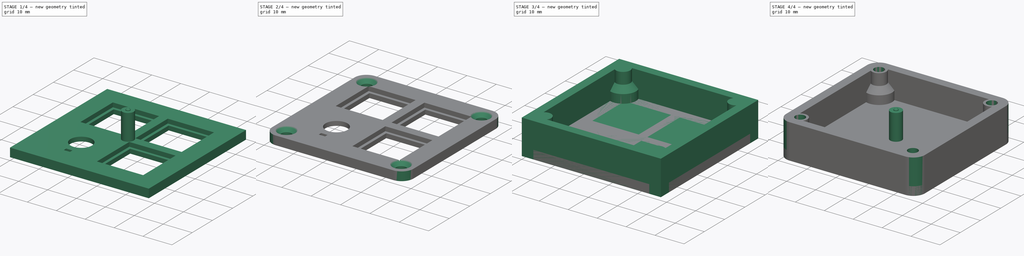
[diagram: build sequence overview — one tinted view per stage of 4, left to right]
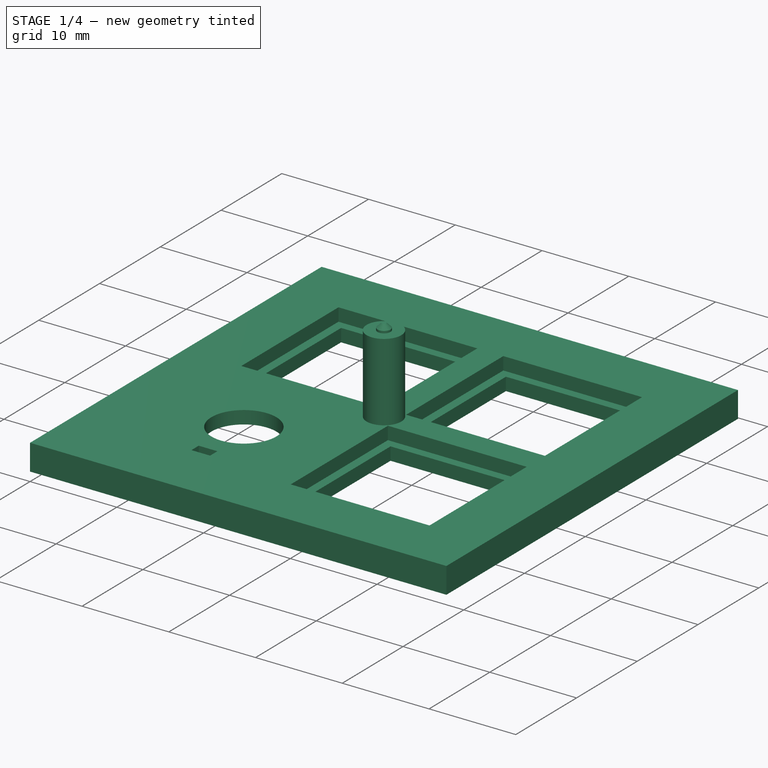
[diagram: stage 1 of 4 — iso view after this stage's code; geometry added in this stage tinted green]
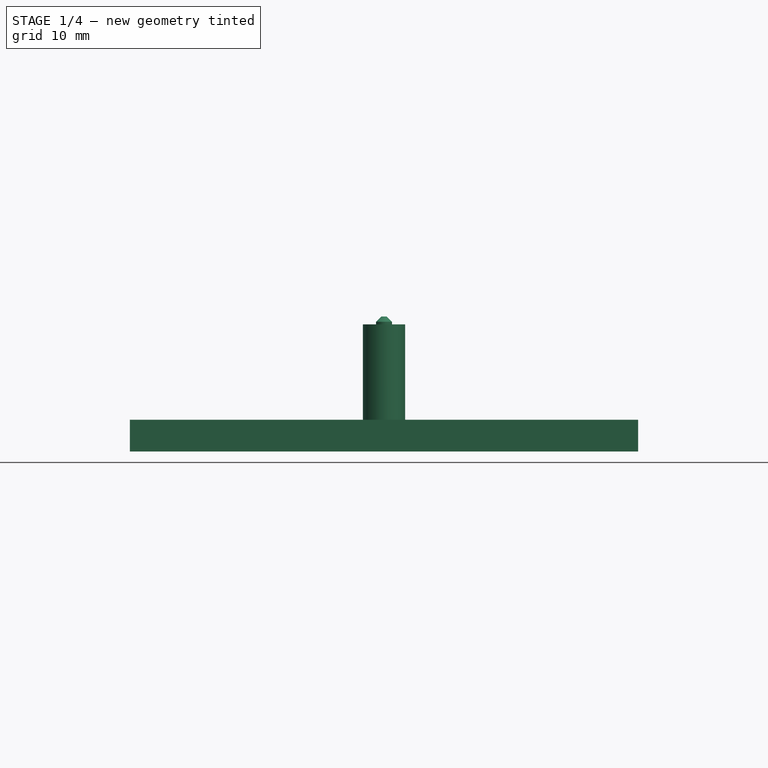
[diagram: stage 1 of 4 — front view after this stage's code; geometry added in this stage tinted green]
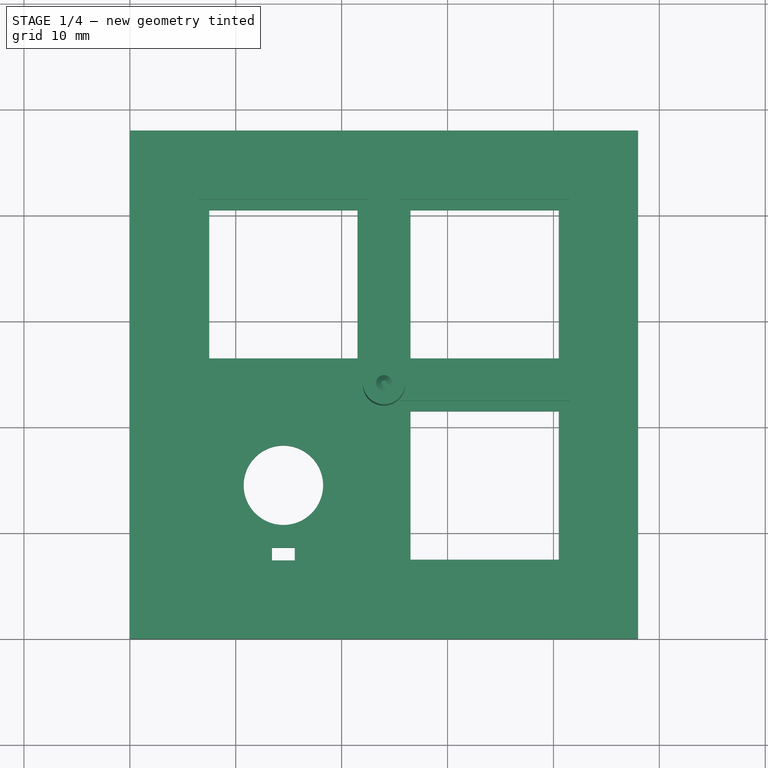
[diagram: stage 1 of 4 — top view after this stage's code; geometry added in this stage tinted green]
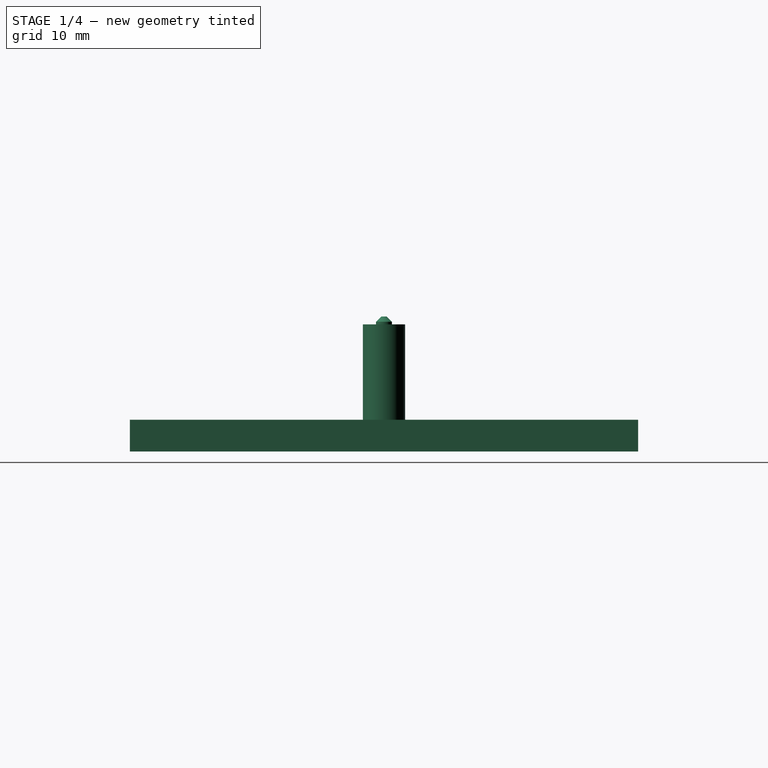
[diagram: stage 1 of 4 — right view after this stage's code; geometry added in this stage tinted green]
FCSTD DOCUMENT  (FreeCAD 1.0R39319 (Git))
Label: kbTestPrint
License: All rights reserved
LicenseURL: https://en.wikipedia.org/wiki/All_rights_reserved
objects: Sketcher::SketchObject×6, PartDesign::SubShapeBinder×6, App::Link×4, Part::FeaturePython×4, PartDesign::Boolean×4, PartDesign::Body×3, PartDesign::Pad×2, PartDesign::Fillet×2, PartDesign::Hole×2, App::VarSet×1, PartDesign::Thickness×1
note: 54 computed .brp shape members not serialized (recipe doc carries the construction recipe); baked Part::Feature solids carry a one-line shape summary decoded from their .brp
EXTERNAL_REF file=Config.FCStd obj=VarSet
EXTERNAL_REF file=SwitchHoleNegative.FCStd obj=Body001
EXTERNAL_REF file=SwitchHoleNegative.FCStd obj=Body003
EXTERNAL_REF file=lib/extras.FCStd obj=Body001
EXTERNAL_REF file=lib/extras.FCStd obj=Body002

FEATURE [Sketcher::SketchObject] Sketch004
  ArcFitTolerance = 1e-06
  AttachmentSupport = -> [XY_Plane002]
  FullyConstrained = true
  MakeInternals = false
  MapMode = 5
  expr: Constraints[0] = <<Config>>#<<Vars>>.FrameBorder + <<Config>>#<<Vars>>.SwitchSpacing
  expr: Constraints[1] = <<Config>>#<<Vars>>.FrameBorder + <<Config>>#<<Vars>>.SwitchSpacing
  sketch-geometry (1):
    g0: GeomPoint X=24 Y=24 Z=0
  constraints (2):
    c: DistanceX(g-1,g0) = 24
    c: DistanceY(g-1,g0) = 24
FEATURE [App::Link] Link003  label="Support"
  LinkedObject = -> <external lib/extras.FCStd>#Body002
FEATURE [Part::FeaturePython] PointArray002  # Draft array (typed FeaturePython)
  Base = -> Link003
  Count = 1
  Fuse = false
  PointObject = -> Sketch004
  expr: .Placement.Base.z = 0
FEATURE [PartDesign::Body] Body001  label="Bottom"
  AllowCompound = false
  Group = -> [Sketch001,Pad001,Thickness,Fillet,Boolean001,Binder003,Hole001,Boolean002]
  Origin = -> Origin001
  Placement = pos=(0,0,-12) rot=(0,0,1;0rad)
  Tip = -> Boolean002
  expr: .Placement.Base.z = -<<Config>>#<<Vars>>.BottomCaseHeight
FEATURE [PartDesign::SubShapeBinder] Binder005
  BindCopyOnChange = 0
  BindMode = 0
  ClaimChildren = false
  Context = -> Body [Boolean003.Binder005.]
  Fuse = false
  MakeFace = true
  OffsetFill = false
  OffsetIntersection = false
  OffsetJoinType = 0
  OffsetOpenResult = false
  PartialLoad = false
  Placement = pos=(0,0,-12) rot=(0,0,1;0rad)
  Refine = true
  Relative = true
  Support = -> [PointArray002]
  _Version = 2
  expr: .Placement.Base.z = -<<Config>>#<<Vars>>.BottomCaseHeight
FEATURE [Sketcher::SketchObject] Sketch005  label="KeysLocations"
  ArcFitTolerance = 1e-06
  AttachmentSupport = -> [XY_Plane002]
  FullyConstrained = true
  MakeInternals = false
  MapMode = 5
  expr: Constraints[0] = <<Config>>#<<Vars>>.FrameBorder + <<Config>>#VarSet.SwitchSpacing * 1.5
  expr: Constraints[1] = <<Config>>#<<Vars>>.FrameBorder + <<Config>>#<<Vars>>.SwitchSpacing * 0.5
  expr: Constraints[2] = <<Config>>#<<Vars>>.FrameBorder + <<Config>>#<<Vars>>.SwitchSpacing * 0.5
  expr: Constraints[5] = <<Config>>#<<Vars>>.SwitchSpacing * 1.5 + <<Config>>#<<Vars>>.FrameBorder
  sketch-geometry (3):
    g0: GeomPoint X=33.5 Y=14.5 Z=0
    g1: GeomPoint X=14.5 Y=33.5 Z=0
    g2: GeomPoint X=33.5 Y=33.5 Z=0
  constraints (6):
    c: DistanceX(g-1,g0) = 33.5
    c: DistanceY(g-1,g0) = 14.5
    c: DistanceX(g-1,g1) = 14.5
    c: Horizontal(g2,g1)
    c: Vertical(g2,g0)
    c: DistanceY(g-1,g1) = 33.5
FEATURE [Part::FeaturePython] PointArray003  # Draft array (typed FeaturePython)
  Base = -> Link
  Count = 3
  Fuse = false
  PointObject = -> Sketch005
FEATURE [PartDesign::SubShapeBinder] Binder  label="CutoutsBinder"
  BindCopyOnChange = 0
  BindMode = 0
  ClaimChildren = false
  Context = -> Body [Binder.]
  Fuse = false
  MakeFace = true
  OffsetFill = false
  OffsetIntersection = false
  OffsetJoinType = 0
  OffsetOpenResult = false
  PartialLoad = false
  Refine = true
  Relative = true
  Support = -> [Link001,PointArray003]
  _Version = 2
FEATURE [PartDesign::Boolean] Boolean
  BaseFeature = -> Pad
  Group = -> [Binder]
  Refine = true
  Suppressed = false
  Type = 1
  UsePlacement = true
FEATURE [PartDesign::Body] Body  label="Top"
  AllowCompound = false
  Group = -> [Sketch,Pad,Boolean,Binder002,Hole,Fillet001,Boolean003]
  Origin = -> Origin
  Tip = -> Boolean003

RESOLVED EXTERNAL PARTS (link-assembly join: the EXTERNAL_REF files above that resolve inside this repo's crawl, each included once):
---- part SwitchHoleNegative.FCStd = doc fcstd_761a885e1cb6 ----
FCSTD DOCUMENT  (FreeCAD 1.0R39319 (Git))
Label: SwitchHoleNegative
License: All rights reserved
LicenseURL: https://en.wikipedia.org/wiki/All_rights_reserved
objects: Sketcher::SketchObject×7, PartDesign::Pad×7, PartDesign::Body×3, App::Link×1
note: 38 computed .brp shape members not serialized (recipe doc carries the construction recipe); baked Part::Feature solids carry a one-line shape summary decoded from their .brp
EXTERNAL_REF file=Config.FCStd obj=VarSet
EXTERNAL_REF file=lib/ec11.FCStd obj=EC11B_SW_Vert_F

FEATURE [Sketcher::SketchObject] Sketch001
  ArcFitTolerance = 1e-06
  AttachmentSupport = -> [XY_Plane003]
  FullyConstrained = true
  MakeInternals = false
  MapMode = 5
  expr: Constraints[8] = <<Config>>#<<Vars>>.SwitchHoleTotal
  expr: Constraints[9] = <<Config>>#<<Vars>>.SwitchHoleTotal
  sketch-geometry (4):
    g0: LineSegment StartX=7.025 StartY=-7.025 StartZ=0 EndX=7.025 EndY=7.025 EndZ=0
    g1: LineSegment StartX=7.025 StartY=7.025 StartZ=0 EndX=-7.025 EndY=7.025 EndZ=0
    g2: LineSegment StartX=-7.025 StartY=7.025 StartZ=0 EndX=-7.025 EndY=-7.025 EndZ=0
    g3: LineSegment StartX=-7.025 StartY=-7.025 StartZ=0 EndX=7.025 EndY=-7.025 EndZ=0
  constraints (11):
    c: Coincident(g0,g1)
    c: Coincident(g1,g2)
    c: Coincident(g2,g3)
    c: Coincident(g3,g0)
    c: Vertical(g0)
    c: Vertical(g2)
    c: Horizontal(g1)
    c: Horizontal(g3)
    c: DistanceX(g1,g1) = 14.05
    c: DistanceY(g2,g2) = 14.05
    c: Symmetric(g1,g0,g-1)
FEATURE [PartDesign::Pad] Pad001
  Direction = (0,0,1)
  Length = 1.5
  Length2 = 10
  Profile = -> Sketch001
  ReferenceAxis = -> Sketch001 [N_Axis]
  Refine = true
  Suppressed = false
  Type = 0
  expr: Length = <<Config>>#<<Vars>>.SwitchPlateThickness
FEATURE [Sketcher::SketchObject] Sketch002
  ArcFitTolerance = 1e-06
  AttachmentSupport = -> [Pad001]
  FullyConstrained = true
  MakeInternals = false
  MapMode = 5
  Placement = pos=(0,0,1.5) rot=(0,0,1;0rad)
  expr: Constraints[8] = <<Config>>#<<Vars>>.SwitchReliefLength
  expr: Constraints[9] = <<Config>>#<<Vars>>.SwitchReliefLength
  sketch-geometry (4):
    g0: LineSegment StartX=-8 StartY=8 StartZ=0 EndX=-8 EndY=-8 EndZ=0
    g1: LineSegment StartX=-8 StartY=-8 StartZ=0 EndX=8 EndY=-8 EndZ=0
    g2: LineSegment StartX=8 StartY=-8 StartZ=0 EndX=8 EndY=8 EndZ=0
    g3: LineSegment StartX=8 StartY=8 StartZ=0 EndX=-8 EndY=8 EndZ=0
  constraints (11):
    c: Coincident(g0,g1)
    c: Coincident(g1,g2)
    c: Coincident(g2,g3)
    c: Coincident(g3,g0)
    c: Vertical(g0)
    c: Vertical(g2)
    c: Horizontal(g1)
    c: Horizontal(g3)
    c: DistanceX(g3,g3) = 16
    c: DistanceY(g0,g0) = 16
    c: Symmetric(g0,g1,g-1)
FEATURE [PartDesign::Pad] Pad002
  BaseFeature = -> Pad001
  Direction = (0,0,1)
  Length = 1.5
  Length2 = 10
  Profile = -> Sketch002
  ReferenceAxis = -> Sketch002 [N_Axis]
  Refine = true
  Suppressed = false
  Type = 0
  expr: Length = <<Config>>#<<Vars>>.PlateThickness - <<Config>>#<<Vars>>.SwitchPlateThickness
FEATURE [PartDesign::Body] Body001  label="SwitchPocket"
  AllowCompound = false
  Group = -> [Sketch001,Pad001,Sketch002,Pad002]
  Origin = -> Origin003
  Placement = pos=(109.5,4.5,0) rot=(0,0,1;0rad)
  Tip = -> Pad002
FEATURE [Sketcher::SketchObject] Sketch
  ArcFitTolerance = 1e-06
  AttachmentSupport = -> [XY_Plane004]
  FullyConstrained = true
  MakeInternals = false
  MapMode = 5
  sketch-geometry (4):
    g0: LineSegment StartX=-6 StartY=-7.1 StartZ=0 EndX=6 EndY=-7.1 EndZ=0
    g1: LineSegment StartX=6 StartY=-7.1 StartZ=0 EndX=6 EndY=7.1 EndZ=0
    g2: LineSegment StartX=6 StartY=7.1 StartZ=0 EndX=-6 EndY=7.1 EndZ=0
    g3: LineSegment StartX=-6 StartY=7.1 StartZ=0 EndX=-6 EndY=-7.1 EndZ=0
  constraints (11):
    c: Coincident(g0,g1)
    c: Coincident(g1,g2)
    c: Coincident(g2,g3)
    c: Coincident(g3,g0)
    c: Horizontal(g0)
    c: Horizontal(g2)
    c: Vertical(g1)
    c: Vertical(g3)
    c: DistanceX(g2,g2) = 12
    c: DistanceY(g3,g3) = 14.2
    c: Symmetric(g2,g0,g-1)
FEATURE [App::Link] Link  label="EC11B-SW-Vert-F"
  LinkPlacement = pos=(0,-0.399999,-5) rot=(0,0,1;0rad)
  LinkedObject = -> <external lib/ec11.FCStd>#EC11B_SW_Vert_F
  Placement = pos=(0,-0.399999,-5) rot=(0,0,1;0rad)
FEATURE [PartDesign::Pad] Pad
  Direction = (0,0,1)
  Length = 1.5
  Length2 = 10
  Profile = -> Sketch
  ReferenceAxis = -> Sketch [N_Axis]
  Refine = true
  Suppressed = false
  Type = 0
  expr: Length = <<Config>>#<<Vars>>.PlateThickness - <<Config>>#<<Vars>>.SwitchPlateThickness
FEATURE [Sketcher::SketchObject] Sketch003
  ArcFitTolerance = 1e-06
  AttachmentSupport = -> [Pad]
  FullyConstrained = true
  MakeInternals = false
  MapMode = 5
  Placement = pos=(0,0,1.5) rot=(0,0,1;0rad)
  sketch-geometry (1):
    g0: Circle CenterX=0 CenterY=0 CenterZ=0 NormalX=0 NormalY=0 NormalZ=1 AngleXU=0 Radius=3.75
  constraints (2):
    c: Coincident(g0,g-1)
    c: Diameter(g0) = 7.5
FEATURE [PartDesign::Pad] Pad003
  BaseFeature = -> Pad
  Direction = (0,0,1)
  Length = 1.5
  Length2 = 10
  Profile = -> Sketch003
  ReferenceAxis = -> Sketch003 [N_Axis]
  Refine = true
  Suppressed = false
  Type = 0
  expr: Length = <<Config>>#<<Vars>>.SwitchPlateThickness
FEATURE [Sketcher::SketchObject] Sketch004
  ArcFitTolerance = 1e-06
  AttachmentSupport = -> [Pad003]
  ExternalGeometry = -> [Pad003]
  FullyConstrained = true
  MakeInternals = false
  MapMode = 5
  Placement = pos=(0,0,1.5) rot=(0,0,1;0rad)
  sketch-geometry (4):
    g0: LineSegment StartX=-1.075 StartY=-7.1 StartZ=0 EndX=1.075 EndY=-7.1 EndZ=0
    g1: LineSegment StartX=1.075 StartY=-7.1 StartZ=0 EndX=1.075 EndY=-5.9 EndZ=0
    g2: LineSegment StartX=1.075 StartY=-5.9 StartZ=0 EndX=-1.075 EndY=-5.9 EndZ=0
    g3: LineSegment StartX=-1.075 StartY=-5.9 StartZ=0 EndX=-1.075 EndY=-7.1 EndZ=0
  constraints (11):
    c: Coincident(g0,g1)
    c: Coincident(g1,g2)
    c: Coincident(g2,g3)
    c: Coincident(g3,g0)
    c: Horizontal(g0)
    c: Vertical(g1)
    c: Vertical(g3)
    c: PointOnObject(g0,g-3)
    c: Symmetric(g1,g2,g-2)
    c: Distance(g1,g3) = 2.15
    c: Distance(g0,g2) = 1.2
FEATURE [PartDesign::Pad] Pad004
  BaseFeature = -> Pad003
  Direction = (0,0,1)
  Length = 1.5
  Length2 = 10
  Profile = -> Sketch004
  ReferenceAxis = -> Sketch004 [N_Axis]
  Refine = true
  Suppressed = false
  Type = 0
  expr: Length = <<Config>>#<<Vars>>.SwitchPlateThickness
FEATURE [PartDesign::Body] Body003  label="RotaryPocket"
  AllowCompound = false
  Group = -> [Sketch,Pad,Sketch003,Pad003,Sketch004,Pad004]
  Origin = -> Origin004
  Tip = -> Pad004
FEATURE [Sketcher::SketchObject] Sketch005
  ArcFitTolerance = 1e-06
  AttachmentSupport = -> [XY_Plane]
  FullyConstrained = true
  MakeInternals = false
  MapMode = 5
  sketch-geometry (4):
    g0: LineSegment StartX=-7.15 StartY=-18.2 StartZ=0 EndX=7.15 EndY=-18.2 EndZ=0
    g1: LineSegment StartX=7.15 StartY=-18.2 StartZ=0 EndX=7.15 EndY=18.2 EndZ=0
    g2: LineSegment StartX=7.15 StartY=18.2 StartZ=0 EndX=-7.15 EndY=18.2 EndZ=0
    g3: LineSegment StartX=-7.15 StartY=18.2 StartZ=0 EndX=-7.15 EndY=-18.2 EndZ=0
  constraints (11):
    c: Coincident(g0,g1)
    c: Coincident(g1,g2)
    c: Coincident(g2,g3)
    c: Coincident(g3,g0)
    c: Horizontal(g0)
    c: Horizontal(g2)
    c: Vertical(g1)
    c: Vertical(g3)
    c: Symmetric(g2,g0,g-1)
    c: DistanceX(g2,g2) = 14.3
    c: DistanceY(g3,g3) = 36.4
FEATURE [PartDesign::Pad] Pad005
  Direction = (0,0,1)
  Length = 3
  Length2 = 10
  Profile = -> Sketch005
  ReferenceAxis = -> Sketch005 [N_Axis]
  Refine = true
  Suppressed = false
  Type = 0
FEATURE [Sketcher::SketchObject] Sketch006
  ArcFitTolerance = 1e-06
  AttachmentSupport = -> [Pad005]
  ExternalGeometry = -> [Pad005]
  FullyConstrained = true
  MakeInternals = false
  MapMode = 5
  Placement = pos=(0,0,0) rot=(1,0,0;3.14159rad)
  sketch-geometry (4):
    g0: LineSegment StartX=-7.15 StartY=18.2 StartZ=0 EndX=-7.15 EndY=15.8 EndZ=0
    g1: LineSegment StartX=-7.15 StartY=15.8 StartZ=0 EndX=7.15 EndY=15.8 EndZ=0
    g2: LineSegment StartX=7.15 StartY=15.8 StartZ=0 EndX=7.15 EndY=18.2 EndZ=0
    g3: LineSegment StartX=7.15 StartY=18.2 StartZ=0 EndX=-7.15 EndY=18.2 EndZ=0
  constraints (11):
    c: Coincident(g0,g1)
    c: Coincident(g1,g2)
    c: Coincident(g2,g3)
    c: Coincident(g3,g0)
    c: Vertical(g0)
    c: Vertical(g2)
    c: Horizontal(g1)
    c: Horizontal(g3)
    c: Coincident(g0,g-4)
    c: PointOnObject(g1,g-5)
    c: DistanceY(g2,g2) = 2.4
FEATURE [PartDesign::Pad] Pad006
  BaseFeature = -> Pad005
  Direction = (0,0,-1)
  Length = 1.5
  Length2 = 10
  Profile = -> Sketch006
  ReferenceAxis = -> Sketch006 [N_Axis]
  Refine = true
  Suppressed = false
  Type = 0
  expr: Length = <<Config>>#<<Vars>>.SwitchPlateThickness
FEATURE [PartDesign::Body] Body  label="NiceViewPocket"
  AllowCompound = false
  Group = -> [Sketch005,Pad005,Sketch006,Pad006]
  Origin = -> Origin
  Tip = -> Pad006
---- part lib/extras.FCStd = doc fcstd_7de95790efa8 ----
FCSTD DOCUMENT  (FreeCAD 1.0R39319 (Git))
Label: extras
License: All rights reserved
LicenseURL: https://en.wikipedia.org/wiki/All_rights_reserved
objects: PartDesign::Pad×5, Sketcher::SketchObject×4, PartDesign::Body×3, PartDesign::Chamfer×2
note: 32 computed .brp shape members not serialized (recipe doc carries the construction recipe); baked Part::Feature solids carry a one-line shape summary decoded from their .brp
EXTERNAL_REF file=../Config.FCStd obj=VarSet

FEATURE [Sketcher::SketchObject] Sketch
  ArcFitTolerance = 1e-06
  AttachmentSupport = -> [XY_Plane]
  FullyConstrained = true
  MakeInternals = false
  MapMode = 5
  sketch-geometry (1):
    g0: Circle CenterX=0 CenterY=0 CenterZ=0 NormalX=0 NormalY=0 NormalZ=1 AngleXU=0 Radius=2.5
  constraints (2):
    c: Coincident(g0,g-1)
    c: Diameter(g0) = 5
FEATURE [PartDesign::Pad] Pad
  Direction = (0,0,1)
  Length = 9
  Length2 = 10
  Profile = -> Sketch
  ReferenceAxis = -> Sketch [N_Axis]
  Refine = true
  Suppressed = false
  Type = 0
  expr: Length = <<Config>>#<<Vars>>.BottomCaseHeight - <<Config>>#<<Vars>>.WallThickness
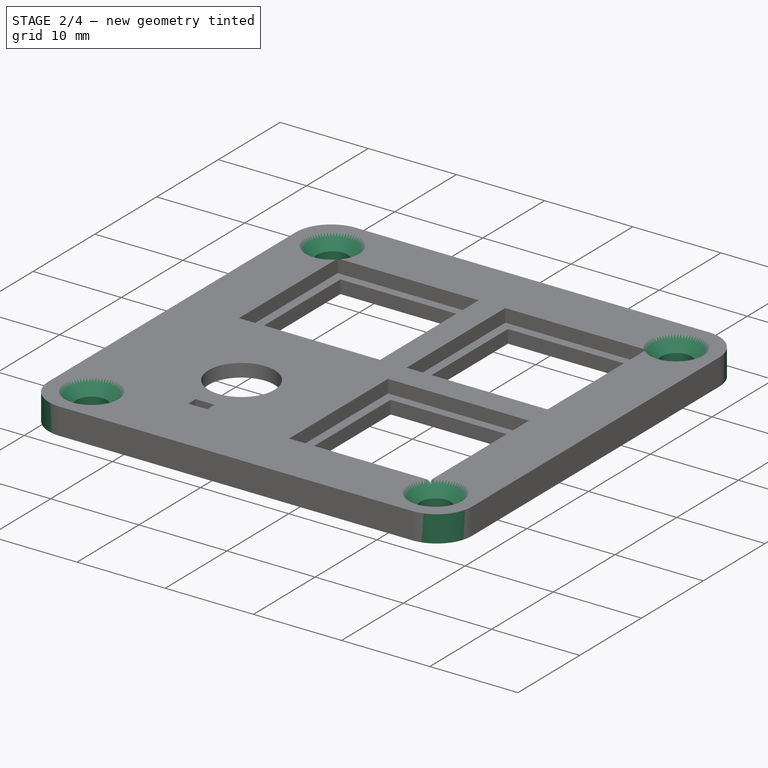
[diagram: stage 2 of 4 — iso view after this stage's code; geometry added in this stage tinted green]
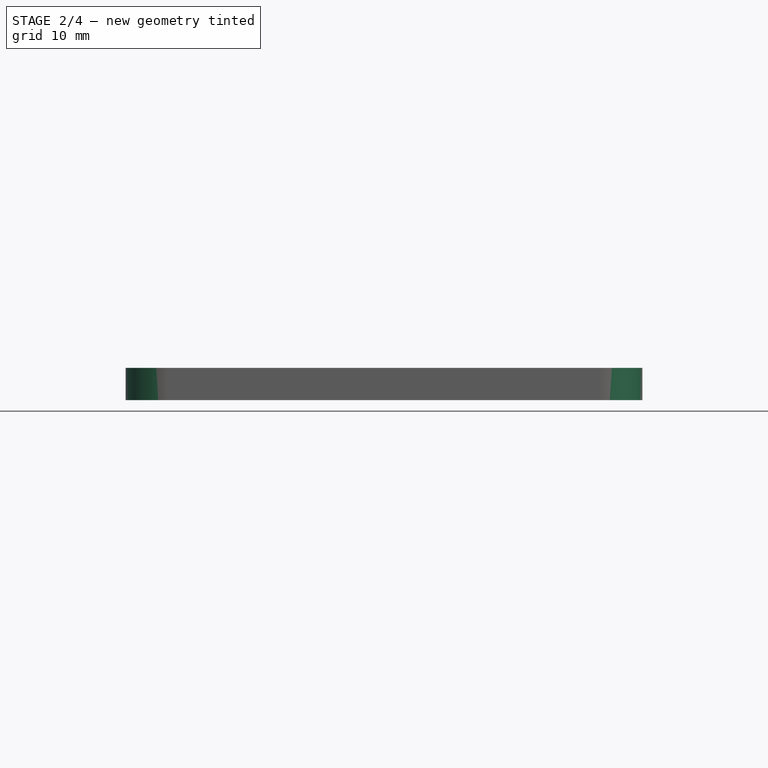
[diagram: stage 2 of 4 — front view after this stage's code; geometry added in this stage tinted green]
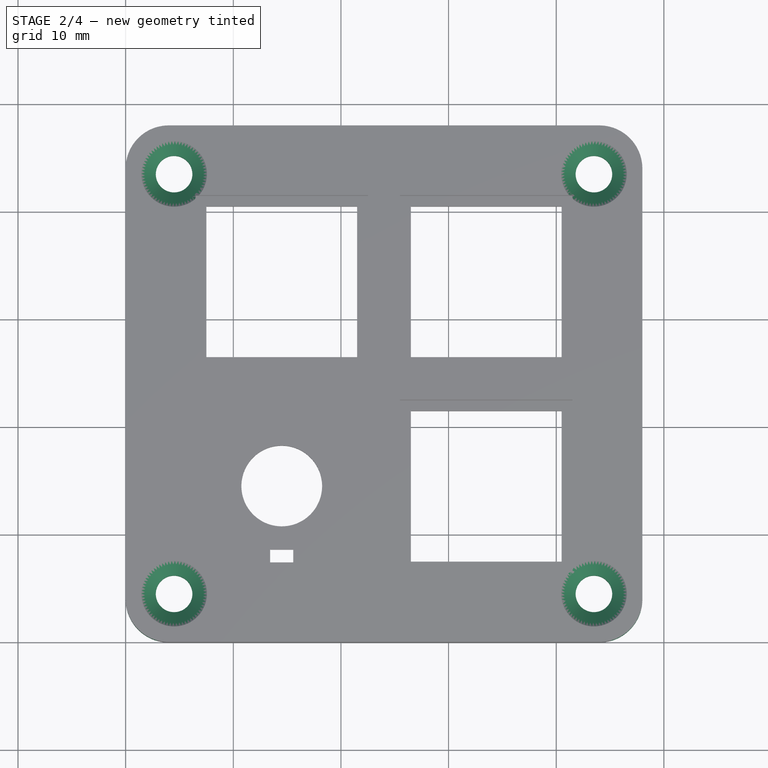
[diagram: stage 2 of 4 — top view after this stage's code; geometry added in this stage tinted green]
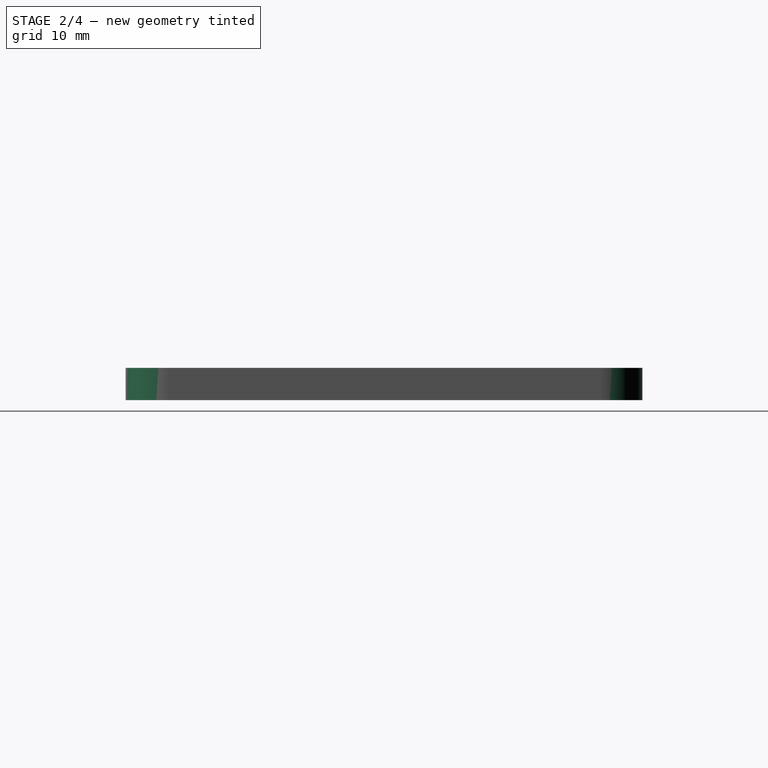
[diagram: stage 2 of 4 — right view after this stage's code; geometry added in this stage tinted green]
FEATURE [PartDesign::Hole] Hole
  BaseFeature = -> Boolean
  CustomThreadClearance = 0
  Depth = 25
  DepthType = 0
  Diameter = 3.4
  DrillForDepth = false
  DrillPoint = 1
  DrillPointAngle = 118
  HoleCutCountersinkAngle = 90
  HoleCutCustomValues = false
  HoleCutDepth = 0
  HoleCutDiameter = 6.1
  HoleCutType = 2
  ModelThread = false
  Profile = -> Binder002
  Refine = true
  Suppressed = false
  Tapered = false
  TaperedAngle = 90
  ThreadClass = 0
  ThreadDepth = 25
  ThreadDepthType = 0
  ThreadDirection = 0
  ThreadFit = 0
  ThreadSize = 9
  ThreadType = 1
  Threaded = false
  UseCustomThreadClearance = false
FEATURE [PartDesign::Fillet] Fillet001
  Base = -> Hole [Edge1,Edge2,Edge8,Edge5]
  BaseFeature = -> Hole
  Radius = 4
  Refine = true
  SupportTransform = false
  Suppressed = false
  UseAllEdges = false
  expr: Radius = <<Config>>#<<Vars>>.BigFillet
FEATURE [PartDesign::Boolean] Boolean003
  BaseFeature = -> Fillet001
  Group = -> [Binder005]
  Refine = true
  Suppressed = false
  Type = 1
  UsePlacement = true
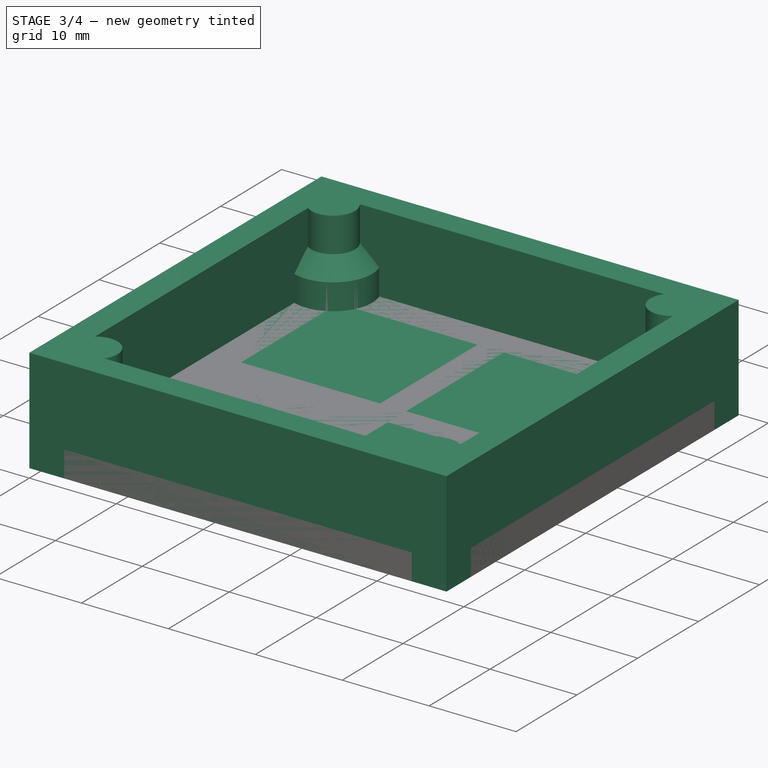
[diagram: stage 3 of 4 — iso view after this stage's code; geometry added in this stage tinted green]
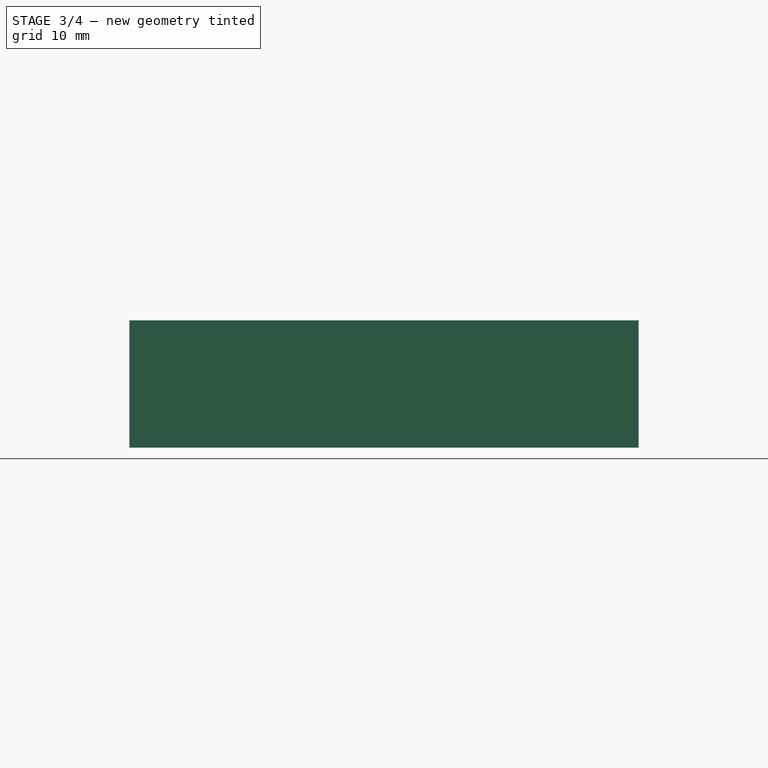
[diagram: stage 3 of 4 — front view after this stage's code; geometry added in this stage tinted green]
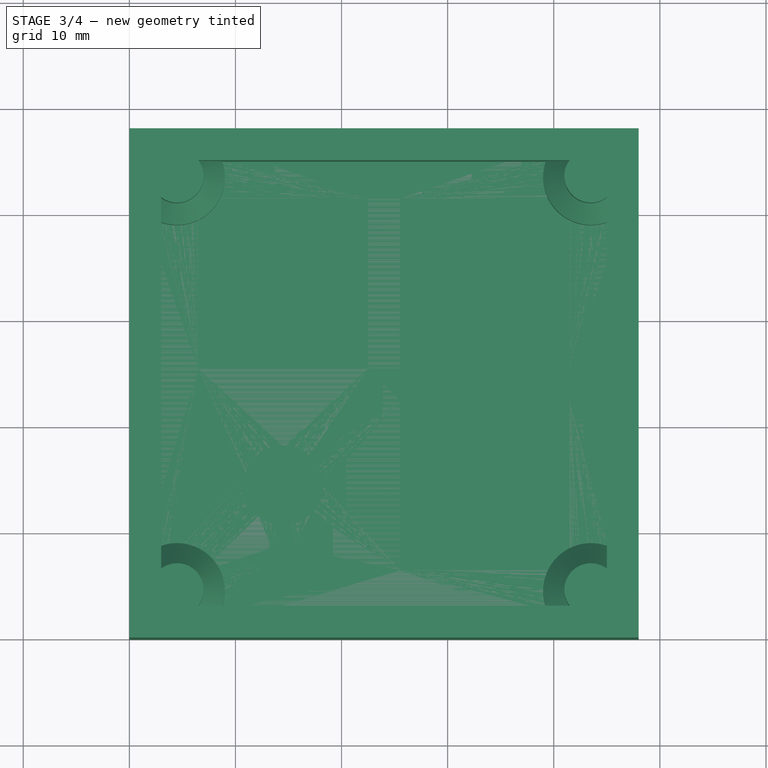
[diagram: stage 3 of 4 — top view after this stage's code; geometry added in this stage tinted green]
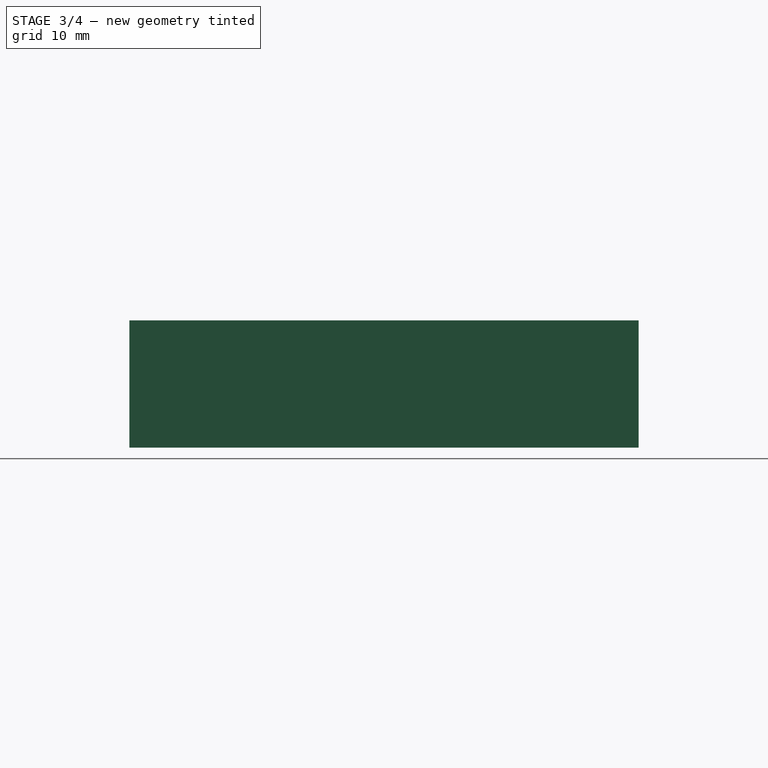
[diagram: stage 3 of 4 — right view after this stage's code; geometry added in this stage tinted green]
FEATURE [Sketcher::SketchObject] Sketch
  ArcFitTolerance = 1e-06
  AttachmentSupport = -> [XY_Plane]
  FullyConstrained = true
  MakeInternals = false
  MapMode = 5
  expr: Constraints[10] = <<Config>>#<<Vars>>.FrameBorder * 2 + <<Config>>#<<Vars>>.SwitchSpacing * <<VarSet>>.keysY
  expr: Constraints[9] = <<Config>>#<<Vars>>.FrameBorder * 2 + <<Config>>#<<Vars>>.SwitchSpacing * <<VarSet>>.keysX
  sketch-geometry (4):
    g0: LineSegment StartX=0 StartY=0 StartZ=0 EndX=48 EndY=0 EndZ=0
    g1: LineSegment StartX=48 StartY=0 StartZ=0 EndX=48 EndY=48 EndZ=0
    g2: LineSegment StartX=48 StartY=48 StartZ=0 EndX=0 EndY=48 EndZ=0
    g3: LineSegment StartX=0 StartY=48 StartZ=0 EndX=0 EndY=0 EndZ=0
  constraints (11):
    c: Coincident(g0,g1)
    c: Coincident(g1,g2)
    c: Coincident(g2,g3)
    c: Coincident(g3,g0)
    c: Horizontal(g0)
    c: Horizontal(g2)
    c: Vertical(g1)
    c: Vertical(g3)
    c: Coincident(g0,g-1)
    c: DistanceX(g0,g0) = 48
    c: DistanceY(g3,g3) = 48
FEATURE [App::VarSet] VarSet
  keysX = 2
  keysY = 2
FEATURE [PartDesign::Pad] Pad
  Direction = (0,0,1)
  Length = 3
  Length2 = 10
  Profile = -> Sketch
  ReferenceAxis = -> Sketch [N_Axis]
  Refine = true
  Suppressed = false
  Type = 0
  expr: Length = <<Config>>#<<Vars>>.PlateThickness
FEATURE [App::Link] Link  label="SwitchPocket"
  LinkedObject = -> <external SwitchHoleNegative.FCStd>#Body001
FEATURE [App::Link] Link001  label="RotaryPocket"
  LinkPlacement = pos=(14.5,14.5,0) rot=(0,0,1;0rad)
  LinkedObject = -> <external SwitchHoleNegative.FCStd>#Body003
  Placement = pos=(14.5,14.5,0) rot=(0,0,1;0rad)
  expr: .Placement.Base.x = <<Config>>#<<Vars>>.SwitchSpacing * 0.5 + <<Config>>#<<Vars>>.FrameBorder
  expr: .Placement.Base.y = <<Config>>#<<Vars>>.FrameBorder + <<Config>>#<<Vars>>.SwitchSpacing * 0.5
FEATURE [Sketcher::SketchObject] Sketch001
  ArcFitTolerance = 1e-06
  AttachmentSupport = -> [XY_Plane001]
  FullyConstrained = true
  MakeInternals = false
  MapMode = 5
  expr: Constraints[10] = <<Config>>#<<Vars>>.SwitchSpacing * <<VarSet>>.keysY + <<Config>>#<<Vars>>.FrameBorder * 2
  expr: Constraints[9] = <<Config>>#<<Vars>>.SwitchSpacing * <<VarSet>>.keysX + <<Config>>#<<Vars>>.FrameBorder * 2
  sketch-geometry (4):
    g0: LineSegment StartX=0 StartY=0 StartZ=0 EndX=48 EndY=0 EndZ=0
    g1: LineSegment StartX=48 StartY=0 StartZ=0 EndX=48 EndY=48 EndZ=0
    g2: LineSegment StartX=48 StartY=48 StartZ=0 EndX=0 EndY=48 EndZ=0
    g3: LineSegment StartX=0 StartY=48 StartZ=0 EndX=0 EndY=0 EndZ=0
  constraints (11):
    c: Coincident(g0,g1)
    c: Coincident(g1,g2)
    c: Coincident(g2,g3)
    c: Coincident(g3,g0)
    c: Horizontal(g0)
    c: Horizontal(g2)
    c: Vertical(g1)
    c: Vertical(g3)
    c: Coincident(g0,g-1)
    c: DistanceX(g2,g2) = 48
    c: DistanceY(g3,g3) = 48
FEATURE [PartDesign::Pad] Pad001
  Direction = (0,0,1)
  Length = 12
  Length2 = 10
  Profile = -> Sketch001
  ReferenceAxis = -> Sketch001 [N_Axis]
  Refine = true
  Suppressed = false
  Type = 0
  expr: Length = <<Config>>#<<Vars>>.BottomCaseHeight
FEATURE [PartDesign::Thickness] Thickness
  Base = -> Pad001 [Face6]
  BaseFeature = -> Pad001
  Intersection = false
  Join = 1
  Mode = 0
  Refine = true
  Reversed = true
  SupportTransform = false
  Suppressed = false
  Value = 3
  expr: Value = <<Config>>#<<Vars>>.BottomPlateThickness
FEATURE [App::Link] Link002  label="InsertCapsule"
  LinkedObject = -> <external lib/extras.FCStd>#Body001
FEATURE [PartDesign::Body] Body002  label="Layout"
  AllowCompound = false
  Origin = -> Origin002
FEATURE [Sketcher::SketchObject] Sketch002  label="screwsPos"
  ArcFitTolerance = 1e-06
  AttachmentSupport = -> [XY_Plane002]
  FullyConstrained = true
  MakeInternals = false
  MapMode = 5
  expr: Constraints[4] = <<Config>>#<<Vars>>.M3StandoffRadius
  expr: Constraints[5] = <<Config>>#<<Vars>>.M3StandoffRadius
  expr: Constraints[6] = <<Config>>#<<Vars>>.FrameBorder * 2 + <<Config>>#<<Vars>>.SwitchSpacing * <<VarSet>>.keysY - <<Config>>#<<Vars>>.M3StandoffRadius
  expr: Constraints[7] = <<Config>>#<<Vars>>.FrameBorder * 2 + <<Config>>#<<Vars>>.SwitchSpacing * <<VarSet>>.keysX - <<Config>>#<<Vars>>.M3StandoffRadius
  sketch-geometry (4):
    g0: GeomPoint X=4.5 Y=4.5 Z=0
    g1: GeomPoint X=4.5 Y=43.5 Z=0
    g2: GeomPoint X=43.5 Y=43.5 Z=0
    g3: GeomPoint X=43.5 Y=4.5 Z=0
  constraints (8):
    c: Vertical(g0,g1)
    c: Horizontal(g0,g3)
    c: Vertical(g3,g2)
    c: Horizontal(g1,g2)
    c: DistanceX(g-1,g0) = 4.5
    c: DistanceY(g-1,g0) = 4.5
    c: DistanceY(g-1,g2) = 43.5
    c: DistanceX(g-1,g2) = 43.5
FEATURE [Part::FeaturePython] PointArray  # WARN: FeaturePython — macro-defined, semantics opaque (R4)
  Base = -> Link002
  Count = 4
  Fuse = false
FEATURE [PartDesign::Body] Body
  AllowCompound = false
  Group = -> [Sketch,Pad]
  Origin = -> Origin
  Tip = -> Pad
FEATURE [Sketcher::SketchObject] Sketch001
  ArcFitTolerance = 1e-06
  AttachmentSupport = -> [XY_Plane001]
  FullyConstrained = true
  MakeInternals = false
  MapMode = 5
  expr: Constraints[1] = <<Config>>#<<Vars>>.M3InsertDiameter + 2 mm * 2
  sketch-geometry (1):
    g0: Circle CenterX=0 CenterY=0 CenterZ=0 NormalX=0 NormalY=0 NormalZ=1 AngleXU=0 Radius=4.5
  constraints (2):
    c: Coincident(g0,g-1)
    c: Diameter(g0) = 9
FEATURE [PartDesign::Pad] Pad001
  Direction = (0,0,1)
  Length = 8
  Length2 = 10
  Profile = -> Sketch001
  ReferenceAxis = -> Sketch001 [N_Axis]
  Refine = true
  Suppressed = false
  Type = 0
FEATURE [PartDesign::Chamfer] Chamfer
  Angle = 45
  Base = -> Pad001 [Edge3]
  BaseFeature = -> Pad001
  ChamferType = 0
  FlipDirection = false
  Refine = true
  Size = 2
  Size2 = 1
  SupportTransform = false
  Suppressed = false
  UseAllEdges = false
FEATURE [PartDesign::Pad] Pad002
  BaseFeature = -> Chamfer
  Direction = (0,0,1)
  Length = 4
  Length2 = 10
  Profile = -> Chamfer [Edge5]
  Refine = true
  Suppressed = false
  Type = 0
  expr: Length = <<Config>>#<<Vars>>.BottomCaseHeight - 8 mm
FEATURE [PartDesign::Body] Body001  label="InsertCapsule"
  AllowCompound = false
  Group = -> [Sketch001,Pad001,Chamfer,Pad002]
  Origin = -> Origin001
  Tip = -> Pad002
FEATURE [Sketcher::SketchObject] Sketch002
  ArcFitTolerance = 1e-06
  AttachmentSupport = -> [XY_Plane002]
  FullyConstrained = true
  MakeInternals = false
  MapMode = 5
  sketch-geometry (1):
    g0: Circle CenterX=0 CenterY=0 CenterZ=0 NormalX=0 NormalY=0 NormalZ=1 AngleXU=0 Radius=2
  constraints (2):
    c: Coincident(g0,g-1)
    c: Diameter(g0) = 4
FEATURE [PartDesign::Pad] Pad003
  Direction = (0,0,1)
  Length = 12
  Length2 = 10
  Profile = -> Sketch002
  ReferenceAxis = -> Sketch002 [N_Axis]
  Refine = true
  Suppressed = false
  Type = 0
  expr: Length = <<Config>>#<<Vars>>.BottomCaseHeight
FEATURE [Sketcher::SketchObject] Sketch003
  ArcFitTolerance = 1e-06
  AttachmentSupport = -> [Pad003]
  FullyConstrained = true
  MakeInternals = false
  MapMode = 5
  Placement = pos=(0,0,12) rot=(0,0,1;0rad)
  sketch-geometry (1):
    g0: Circle CenterX=0 CenterY=0 CenterZ=0 NormalX=0 NormalY=0 NormalZ=1 AngleXU=0 Radius=0.75
  constraints (2):
    c: Coincident(g0,g-1)
    c: Diameter(g0) = 1.5
FEATURE [PartDesign::Pad] Pad004
  BaseFeature = -> Pad003
  Direction = (0,0,1)
  Length = 0.75
  Length2 = 10
  Profile = -> Sketch003
  ReferenceAxis = -> Sketch003 [N_Axis]
  Refine = true
  Suppressed = false
  Type = 0
FEATURE [PartDesign::Chamfer] Chamfer001
  Angle = 45
  Base = -> Pad004 [Edge6]
  BaseFeature = -> Pad004
  ChamferType = 0
  FlipDirection = false
  Refine = true
  Size = 0.5
  Size2 = 1
  SupportTransform = false
  Suppressed = false
  UseAllEdges = false
FEATURE [PartDesign::Body] Body002  label="Support"
  AllowCompound = false
  Group = -> [Sketch002,Pad003,Sketch003,Pad004,Chamfer001]
  Origin = -> Origin002
  Tip = -> Chamfer001
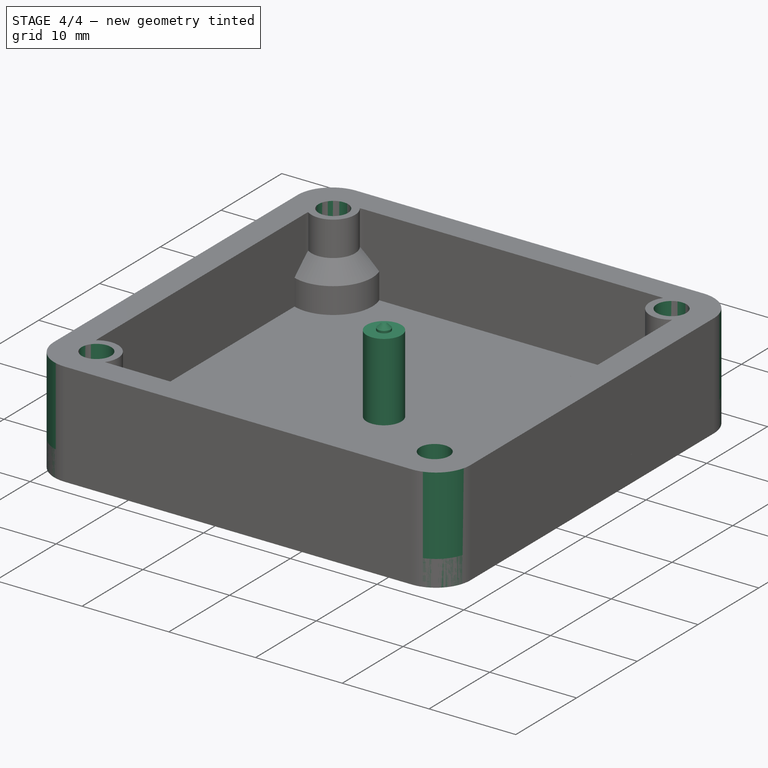
[diagram: stage 4 of 4 — iso view after this stage's code; geometry added in this stage tinted green]
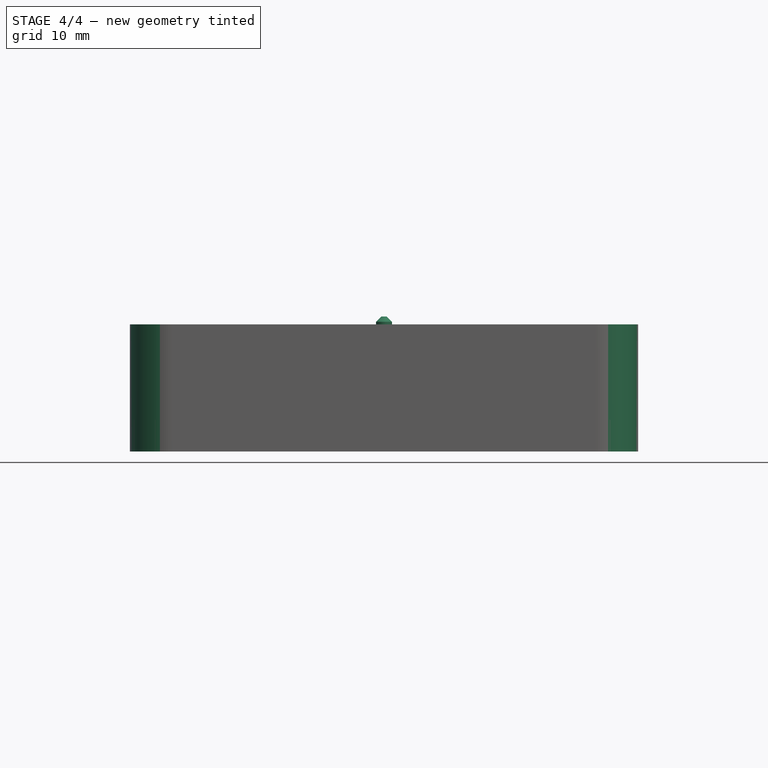
[diagram: stage 4 of 4 — front view after this stage's code; geometry added in this stage tinted green]
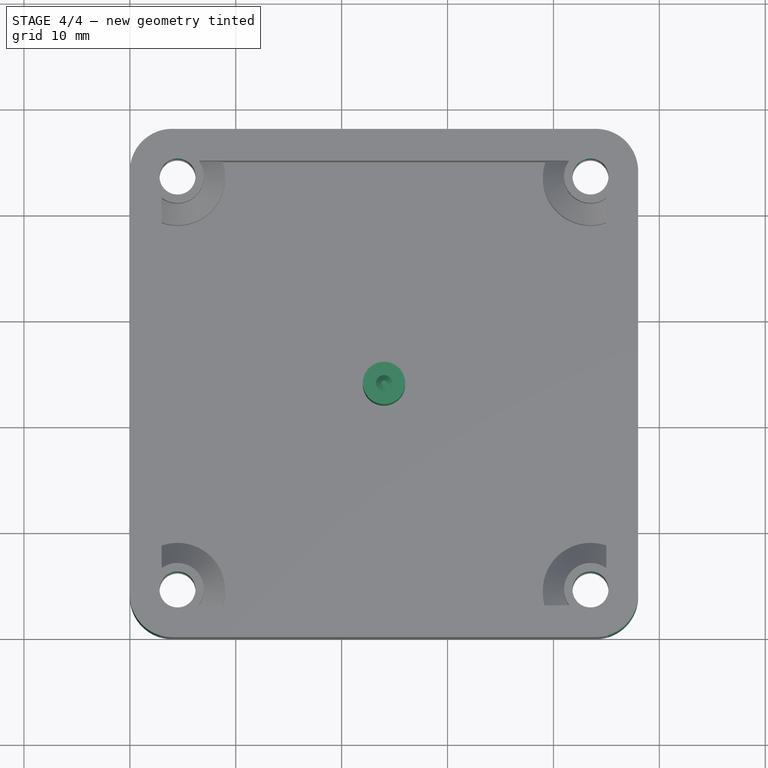
[diagram: stage 4 of 4 — top view after this stage's code; geometry added in this stage tinted green]
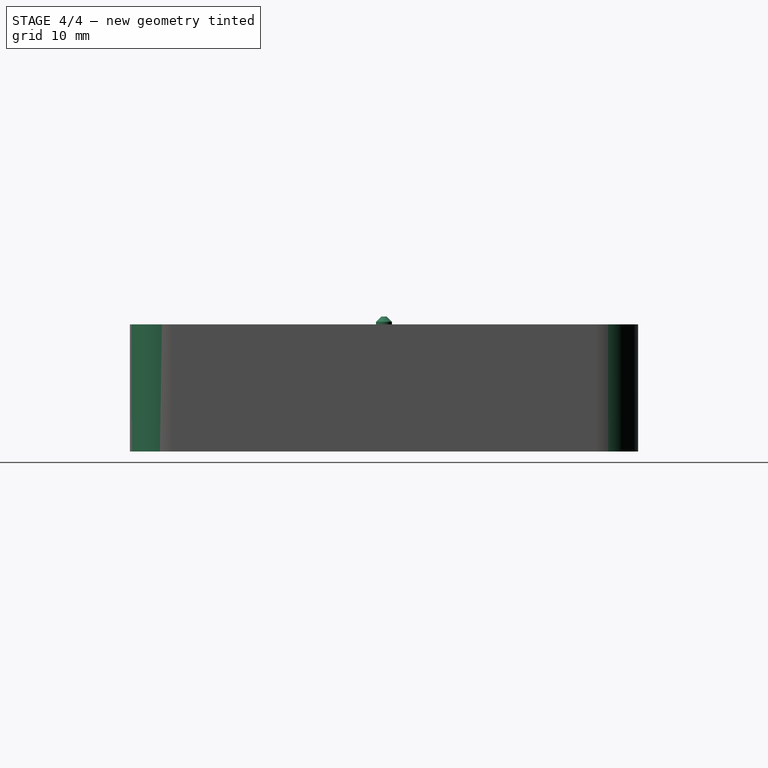
[diagram: stage 4 of 4 — right view after this stage's code; geometry added in this stage tinted green]
FEATURE [PartDesign::Fillet] Fillet
  Base = -> Thickness [Edge1,Edge2,Edge5,Edge8,Edge22,Edge17,Edge18,Edge20]
  BaseFeature = -> Thickness
  Radius = 4
  Refine = true
  SupportTransform = false
  Suppressed = false
  UseAllEdges = false
  expr: Radius = <<Config>>#<<Vars>>.BigFillet
FEATURE [PartDesign::SubShapeBinder] Binder001
  BindCopyOnChange = 0
  BindMode = 0
  ClaimChildren = false
  Context = -> Body001 [Binder001.]
  Fuse = false
  MakeFace = true
  OffsetFill = false
  OffsetIntersection = false
  OffsetJoinType = 0
  OffsetOpenResult = false
  PartialLoad = false
  Refine = true
  Relative = true
  Support = -> [PointArray]
  _Version = 2
FEATURE [PartDesign::Boolean] Boolean001
  BaseFeature = -> Fillet
  Group = -> [Binder001]
  Refine = true
  Suppressed = false
  Type = 0
  UsePlacement = true
FEATURE [Sketcher::SketchObject] Sketch003
  ArcFitTolerance = 1e-06
  AttachmentSupport = -> [XY_Plane002]
  FullyConstrained = true
  MakeInternals = false
  MapMode = 5
  sketch-geometry (1):
    g0: Circle CenterX=0 CenterY=0 CenterZ=0 NormalX=0 NormalY=0 NormalZ=1 AngleXU=0 Radius=2.5
  constraints (2):
    c: Coincident(g0,g-1)
    c: Diameter(g0) = 5
FEATURE [Part::FeaturePython] PointArray001  # Draft array (typed FeaturePython)
  Base = -> Sketch003
  Count = 4
  Fuse = false
  PointObject = -> Sketch002
FEATURE [PartDesign::SubShapeBinder] Binder002
  BindCopyOnChange = 0
  BindMode = 0
  ClaimChildren = false
  Context = -> Body [Binder002.]
  Fuse = false
  MakeFace = true
  OffsetFill = false
  OffsetIntersection = false
  OffsetJoinType = 0
  OffsetOpenResult = false
  PartialLoad = false
  Placement = pos=(0,0,3) rot=(0,0,1;0rad)
  Refine = true
  Relative = true
  Support = -> [PointArray001]
  _Version = 2
  expr: .Placement.Base.z = <<Config>>#<<Vars>>.PlateThickness
FEATURE [PartDesign::SubShapeBinder] Binder003
  BindCopyOnChange = 0
  BindMode = 0
  ClaimChildren = false
  Context = -> Body001 [Binder003.]
  Fuse = false
  MakeFace = true
  OffsetFill = false
  OffsetIntersection = false
  OffsetJoinType = 0
  OffsetOpenResult = false
  PartialLoad = false
  Placement = pos=(0,0,-12) rot=(0,0,1;0rad)
  Refine = true
  Relative = true
  Support = -> [PointArray001]
  _Version = 2
  expr: .Placement.Base.z = -<<Config>>#<<Vars>>.BottomCaseHeight
FEATURE [PartDesign::Hole] Hole001
  BaseFeature = -> Boolean001
  CustomThreadClearance = 0
  Depth = 25
  DepthType = 0
  Diameter = 3.4
  DrillForDepth = false
  DrillPoint = 1
  DrillPointAngle = 118
  HoleCutCountersinkAngle = 90
  HoleCutCustomValues = false
  HoleCutDepth = 5
  HoleCutDiameter = 4.05
  HoleCutType = 3
  ModelThread = false
  Profile = -> Binder003
  Refine = true
  Reversed = true
  Suppressed = false
  Tapered = false
  TaperedAngle = 90
  ThreadClass = 0
  ThreadDepth = 25
  ThreadDepthType = 0
  ThreadDirection = 0
  ThreadFit = 0
  ThreadSize = 9
  ThreadType = 1
  Threaded = false
  UseCustomThreadClearance = false
  expr: HoleCutDepth = <<Config>>#<<Vars>>.M3InsertLength
  expr: HoleCutDiameter = <<Config>>#<<Vars>>.M3InsertDiameter
FEATURE [PartDesign::SubShapeBinder] Binder004
  BindCopyOnChange = 0
  BindMode = 0
  ClaimChildren = false
  Context = -> Body001 [Binder004.]
  Fuse = false
  MakeFace = true
  OffsetFill = false
  OffsetIntersection = false
  OffsetJoinType = 0
  OffsetOpenResult = false
  PartialLoad = false
  Refine = true
  Relative = true
  Support = -> [PointArray002]
  _Version = 2
FEATURE [PartDesign::Boolean] Boolean002
  BaseFeature = -> Hole001
  Group = -> [Binder004]
  Refine = true
  Suppressed = false
  Type = 0
  UsePlacement = true
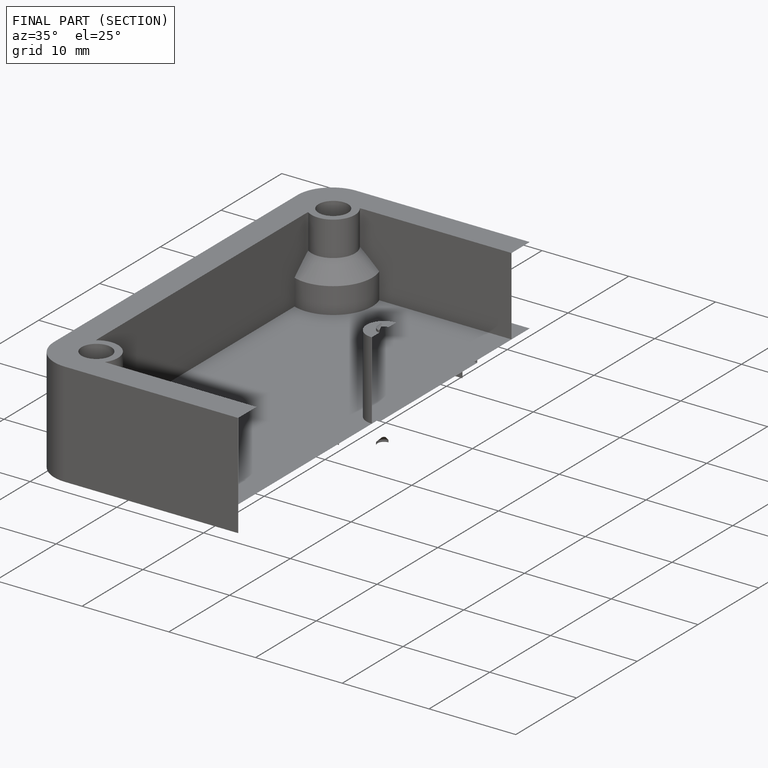
[diagram: finished part — half-section view (interior)]
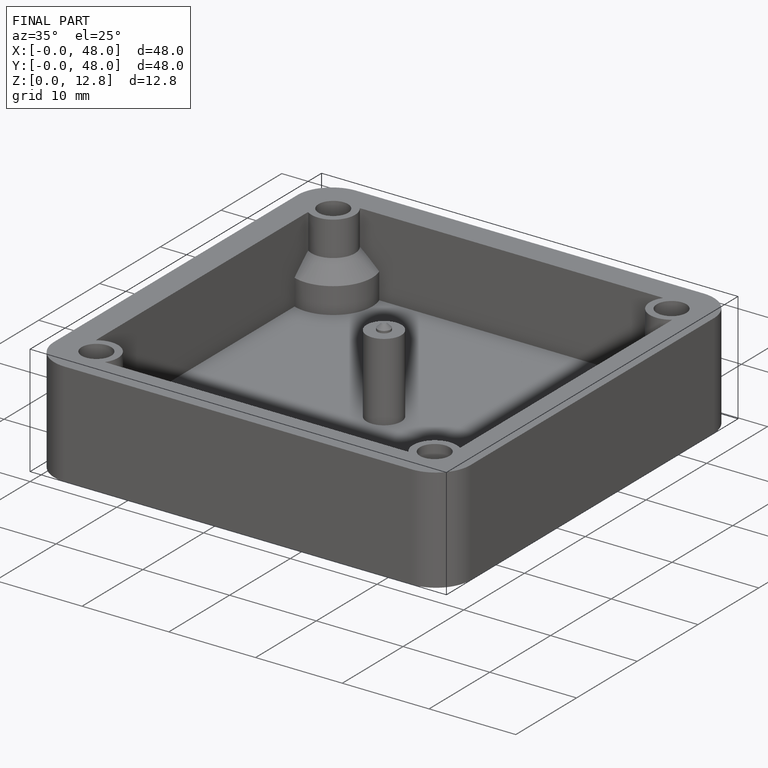
[diagram: finished part — iso view with bounding-box wireframe]
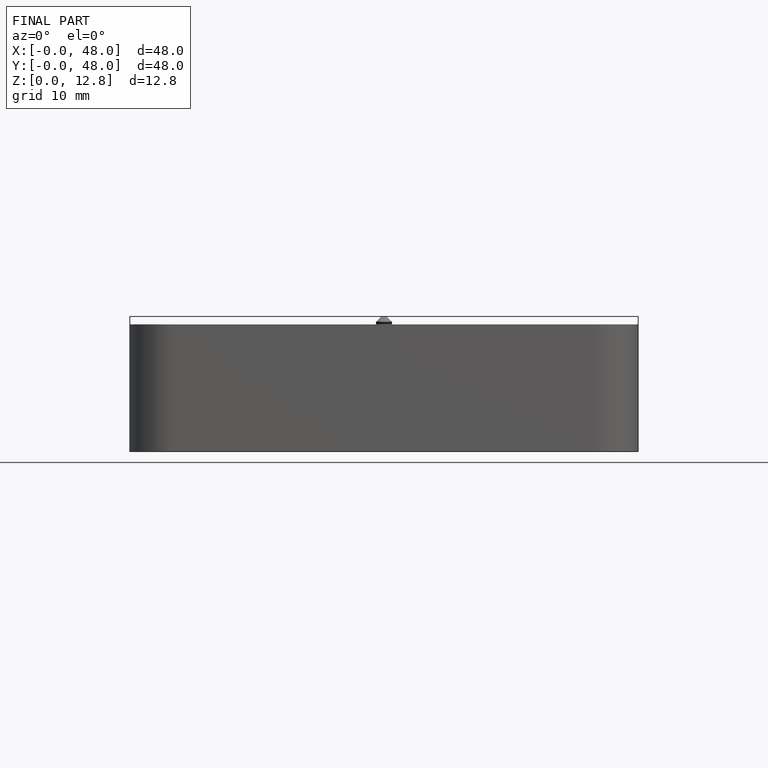
[diagram: finished part — front view with bounding-box wireframe]
